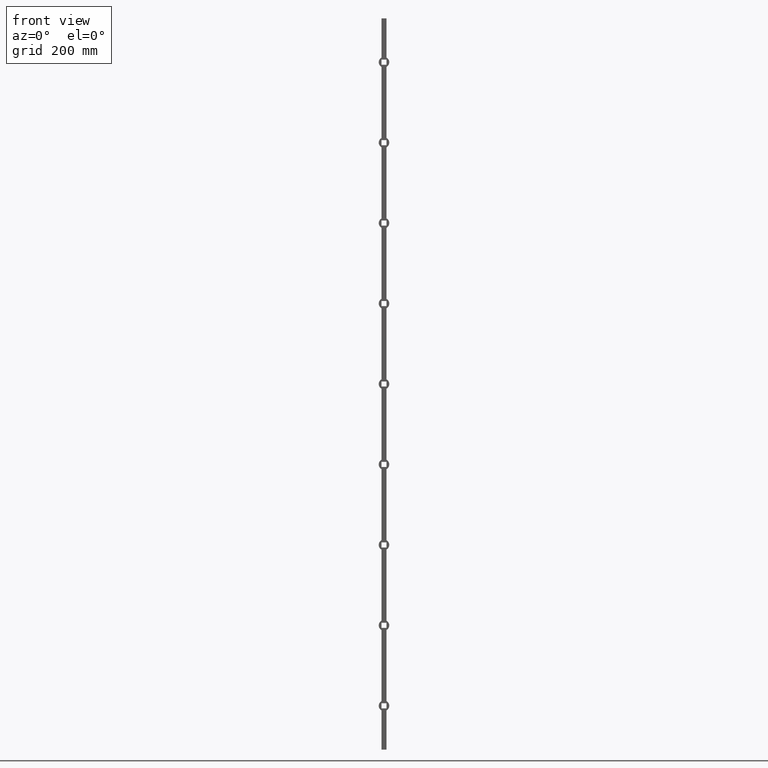
[diagram: clean part render]
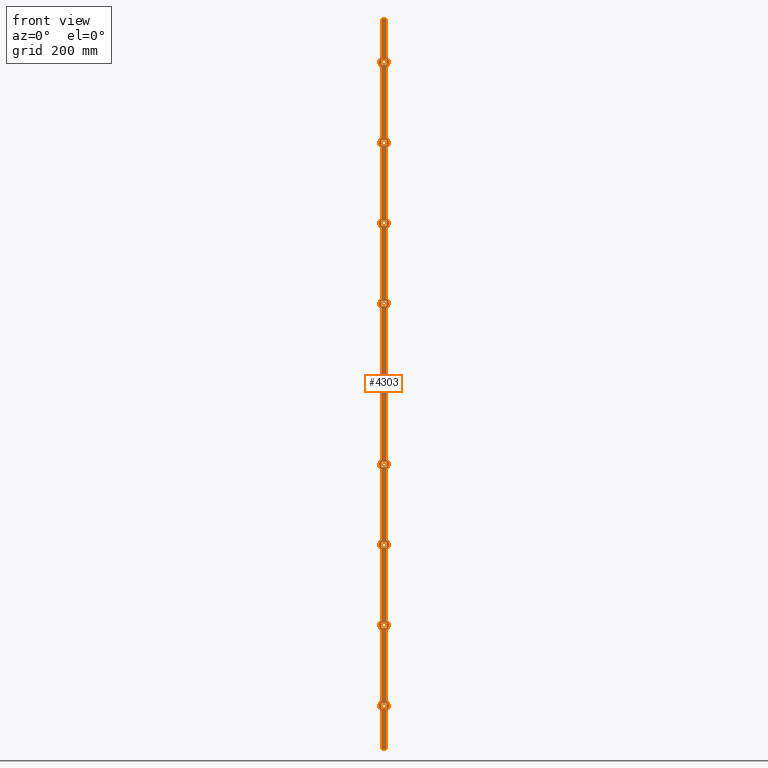
[diagram: same view with one face highlighted and labeled with its STEP entity id]
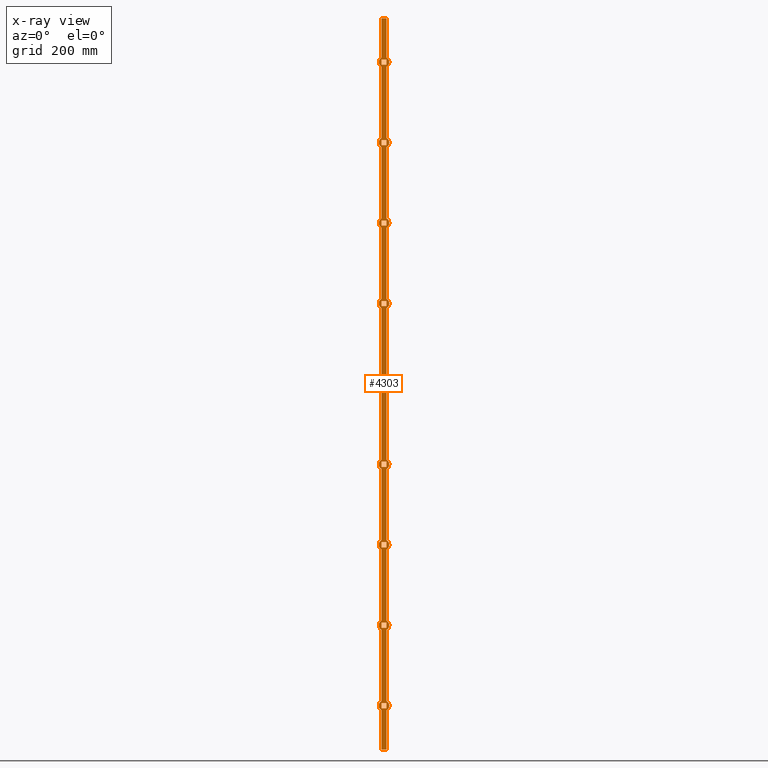
[diagram: x-ray of the same camera — body ghosted, the highlighted face saturated]
A machine part, front view. The second image highlights one B-rep face of the part: STEP entity #4303.
The next image is the same camera in x-ray: the body ghosted, the highlighted face saturated — about 0% of this face is hidden behind the body in this view.
In plain terms, the highlighted planar face has unit normal (0, 1, 0).
Its self-contained STEP definition (entity closure, byte-faithful):
#7 = CARTESIAN_POINT ( 'NONE',  ( -7.000000000000005329, -7.000000000000000888, 667.0000000000000000 ) ) ;
#47 = ORIENTED_EDGE ( 'NONE', *, *, #10634, .F. ) ;
#53 = DIRECTION ( 'NONE',  ( 0.000000000000000000, 0.000000000000000000, 1.000000000000000000 ) ) ;
#68 = LINE ( 'NONE', #8842, #1652 ) ;
#92 = CARTESIAN_POINT ( 'NONE',  ( 0.000000000000000000, -7.000000000000000888, -660.0000000000000000 ) ) ;
#98 = DIRECTION ( 'NONE',  ( -0.000000000000000000, -0.000000000000000000, -1.000000000000000000 ) ) ;
#103 = CARTESIAN_POINT ( 'NONE',  ( -6.999999999999998224, -6.999999999999999112, -892.6984250992002217 ) ) ;
#123 = ORIENTED_EDGE ( 'NONE', *, *, #2874, .T. ) ;
#125 = LINE ( 'NONE', #7382, #8103 ) ;
#161 = ORIENTED_EDGE ( 'NONE', *, *, #2109, .F. ) ;
#181 = EDGE_CURVE ( 'NONE', #1830, #12779, #4442, .T. ) ;
#192 = VECTOR ( 'NONE', #8059, 1000.000000000000000 ) ;
#199 = CARTESIAN_POINT ( 'NONE',  ( 0.000000000000000000, -7.000000000000000888, -220.0000000000000853 ) ) ;
#200 = VECTOR ( 'NONE', #12889, 1000.000000000000000 ) ;
#216 = CARTESIAN_POINT ( 'NONE',  ( -7.000000000000007105, -7.000000000000000000, -7.000000000000117240 ) ) ;
#270 = VECTOR ( 'NONE', #12635, 1000.000000000000000 ) ;
#276 = VERTEX_POINT ( 'NONE', #5765 ) ;
#281 = LINE ( 'NONE', #10455, #1715 ) ;
#320 = LINE ( 'NONE', #3691, #10215 ) ;
#367 = CARTESIAN_POINT ( 'NONE',  ( -6.999999999999998224, -7.000000000000000000, 1000.000000000000000 ) ) ;
#407 = EDGE_CURVE ( 'NONE', #3370, #492, #320, .T. ) ;
#431 = CARTESIAN_POINT ( 'NONE',  ( 7.000000000000005329, -7.000000000000000888, -227.0000000000000853 ) ) ;
#443 = CARTESIAN_POINT ( 'NONE',  ( 7.000000000000001776, -7.000000000000000000, 1000.000000000000000 ) ) ;
#454 = DIRECTION ( 'NONE',  ( -0.000000000000000000, -0.000000000000000000, -1.000000000000000000 ) ) ;
#492 = VERTEX_POINT ( 'NONE', #7803 ) ;
#535 = ORIENTED_EDGE ( 'NONE', *, *, #12861, .F. ) ;
#561 = AXIS2_PLACEMENT_3D ( 'NONE', #5137, #13164, #7038 ) ;
#587 = CARTESIAN_POINT ( 'NONE',  ( 0.000000000000000000, -7.000000000000000888, -440.0000000000000568 ) ) ;
#589 = EDGE_CURVE ( 'NONE', #10138, #10401, #8913, .T. ) ;
#590 = VERTEX_POINT ( 'NONE', #9875 ) ;
#595 = LINE ( 'NONE', #5726, #8250 ) ;
#597 = VERTEX_POINT ( 'NONE', #1987 ) ;
#633 = DIRECTION ( 'NONE',  ( 0.000000000000000000, 0.000000000000000000, 1.000000000000000000 ) ) ;
#636 = CARTESIAN_POINT ( 'NONE',  ( -7.000000000000007105, -7.000000000000000000, 212.9999999999999716 ) ) ;
#642 = CARTESIAN_POINT ( 'NONE',  ( 0.000000000000000000, -7.000000000000000000, 0.000000000000000000 ) ) ;
#675 = CARTESIAN_POINT ( 'NONE',  ( -6.999999999999998224, -6.999999999999999112, -672.6984250992003354 ) ) ;
#698 = ORIENTED_EDGE ( 'NONE', *, *, #2437, .F. ) ;
#701 = VERTEX_POINT ( 'NONE', #2103 ) ;
#714 = VERTEX_POINT ( 'NONE', #9082 ) ;
#717 = CARTESIAN_POINT ( 'NONE',  ( 7.000000000000001776, -7.000000000000000000, 1000.000000000000000 ) ) ;
#726 = ORIENTED_EDGE ( 'NONE', *, *, #6035, .T. ) ;
#732 = EDGE_CURVE ( 'NONE', #2887, #10269, #8580, .T. ) ;
#796 = DIRECTION ( 'NONE',  ( 1.239088197126289831E-16, 0.000000000000000000, 1.000000000000000000 ) ) ;
#822 = LINE ( 'NONE', #12216, #8947 ) ;
#829 = EDGE_LOOP ( 'NONE', ( #4002, #7876, #5985, #3697 ) ) ;
#848 = DIRECTION ( 'NONE',  ( -1.239088197126289831E-16, -0.000000000000000000, -1.000000000000000000 ) ) ;
#857 = CARTESIAN_POINT ( 'NONE',  ( -6.999999999999998224, -7.000000000000000000, 1000.000000000000000 ) ) ;
#859 = LINE ( 'NONE', #8534, #9307 ) ;
#867 = CARTESIAN_POINT ( 'NONE',  ( 7.000000000000021316, -7.000000000000000888, -672.6984250992003354 ) ) ;
#879 = CARTESIAN_POINT ( 'NONE',  ( -7.000000000000007105, -7.000000000000000888, -227.0000000000000853 ) ) ;
#904 = VECTOR ( 'NONE', #454, 1000.000000000000000 ) ;
#912 = FACE_BOUND ( 'NONE', #10917, .T. ) ;
#921 = VECTOR ( 'NONE', #11115, 1000.000000000000000 ) ;
#928 = VECTOR ( 'NONE', #12713, 1000.000000000000000 ) ;
#937 = EDGE_CURVE ( 'NONE', #1196, #3279, #6989, .T. ) ;
#951 = CIRCLE ( 'NONE', #10549, 14.49999999999995737 ) ;
#959 = ORIENTED_EDGE ( 'NONE', *, *, #407, .T. ) ;
#1082 = VECTOR ( 'NONE', #2829, 1000.000000000000000 ) ;
#1115 = DIRECTION ( 'NONE',  ( -1.239088197126289831E-16, -0.000000000000000000, -1.000000000000000000 ) ) ;
#1158 = CARTESIAN_POINT ( 'NONE',  ( -7.000000000000007105, -7.000000000000000888, -227.0000000000000853 ) ) ;
#1159 = DIRECTION ( 'NONE',  ( -1.239088197126289831E-16, -0.000000000000000000, -1.000000000000000000 ) ) ;
#1196 = VERTEX_POINT ( 'NONE', #11306 ) ;
#1199 = CARTESIAN_POINT ( 'NONE',  ( 0.000000000000000000, -7.000000000000000000, 880.0000000000000000 ) ) ;
#1211 = VERTEX_POINT ( 'NONE', #8645 ) ;
#1224 = DIRECTION ( 'NONE',  ( 1.000000000000000000, 0.000000000000000000, 0.000000000000000000 ) ) ;
#1250 = CARTESIAN_POINT ( 'NONE',  ( -7.000000000000007105, -7.000000000000000000, -447.0000000000000568 ) ) ;
#1301 = DIRECTION ( 'NONE',  ( -0.000000000000000000, -0.000000000000000000, -1.000000000000000000 ) ) ;
#1309 = EDGE_CURVE ( 'NONE', #9758, #6718, #951, .T. ) ;
#1326 = CARTESIAN_POINT ( 'NONE',  ( 7.000000000000021316, -7.000000000000000888, -452.6984250992003354 ) ) ;
#1411 = EDGE_CURVE ( 'NONE', #1817, #13088, #10500, .T. ) ;
#1430 = DIRECTION ( 'NONE',  ( -0.000000000000000000, -0.000000000000000000, -1.000000000000000000 ) ) ;
#1493 = VERTEX_POINT ( 'NONE', #5877 ) ;
#1504 = AXIS2_PLACEMENT_3D ( 'NONE', #3690, #7757, #11796 ) ;
#1506 = CARTESIAN_POINT ( 'NONE',  ( -7.000000000000018652, -7.000000000000000888, -427.3015749007997783 ) ) ;
#1571 = CARTESIAN_POINT ( 'NONE',  ( -7.000000000000007105, -7.000000000000000888, -7.000000000000006217 ) ) ;
#1607 = EDGE_LOOP ( 'NONE', ( #123, #7286, #726, #3859 ) ) ;
#1613 = EDGE_CURVE ( 'NONE', #2430, #8428, #5233, .T. ) ;
#1614 = VERTEX_POINT ( 'NONE', #4071 ) ;
#1617 = CARTESIAN_POINT ( 'NONE',  ( -6.999999999999998224, -7.000000000000000000, 427.3015749007996646 ) ) ;
#1618 = CARTESIAN_POINT ( 'NONE',  ( 7.000000000000001776, -7.000000000000000000, 1000.000000000000000 ) ) ;
#1652 = VECTOR ( 'NONE', #1805, 1000.000000000000000 ) ;
#1654 = ORIENTED_EDGE ( 'NONE', *, *, #5805, .T. ) ;
#1663 = CARTESIAN_POINT ( 'NONE',  ( -7.000000000000018652, -7.000000000000000000, 892.6984250992002217 ) ) ;
#1715 = VECTOR ( 'NONE', #10194, 1000.000000000000000 ) ;
#1716 = CARTESIAN_POINT ( 'NONE',  ( 7.000000000000005329, -7.000000000000000888, -447.0000000000000568 ) ) ;
#1747 = DIRECTION ( 'NONE',  ( 0.000000000000000000, 1.000000000000000000, 0.000000000000000000 ) ) ;
#1776 = EDGE_CURVE ( 'NONE', #10458, #6679, #13050, .T. ) ;
#1805 = DIRECTION ( 'NONE',  ( -1.239088197126289831E-16, -0.000000000000000000, -1.000000000000000000 ) ) ;
#1817 = VERTEX_POINT ( 'NONE', #11863 ) ;
#1819 = DIRECTION ( 'NONE',  ( -0.000000000000000000, -0.000000000000000000, -1.000000000000000000 ) ) ;
#1824 = CARTESIAN_POINT ( 'NONE',  ( 7.000000000000005329, -7.000000000000000888, 212.9999999999999716 ) ) ;
#1830 = VERTEX_POINT ( 'NONE', #9575 ) ;
#1850 = VERTEX_POINT ( 'NONE', #675 ) ;
#1864 = EDGE_CURVE ( 'NONE', #10401, #6679, #2852, .T. ) ;
#1875 = CARTESIAN_POINT ( 'NONE',  ( -7.000000000000007105, -7.000000000000000888, 212.9999999999999716 ) ) ;
#1899 = VERTEX_POINT ( 'NONE', #1824 ) ;
#1987 = CARTESIAN_POINT ( 'NONE',  ( 7.000000000000007105, -7.000000000000000888, 447.0000000000000000 ) ) ;
#2007 = VERTEX_POINT ( 'NONE', #5152 ) ;
#2032 = DIRECTION ( 'NONE',  ( 1.239088197126289831E-16, 0.000000000000000000, 1.000000000000000000 ) ) ;
#2035 = LINE ( 'NONE', #2329, #9037 ) ;
#2048 = VERTEX_POINT ( 'NONE', #1250 ) ;
#2074 = DIRECTION ( 'NONE',  ( 1.239088197126289831E-16, 0.000000000000000000, 1.000000000000000000 ) ) ;
#2103 = CARTESIAN_POINT ( 'NONE',  ( -7.000000000000005329, -7.000000000000000888, -213.0000000000000853 ) ) ;
#2107 = VECTOR ( 'NONE', #3175, 1000.000000000000000 ) ;
#2109 = EDGE_CURVE ( 'NONE', #12215, #12056, #3649, .T. ) ;
#2112 = VECTOR ( 'NONE', #796, 1000.000000000000000 ) ;
#2114 = CARTESIAN_POINT ( 'NONE',  ( -7.000000000000005329, -7.000000000000000888, 447.0000000000000000 ) ) ;
#2124 = CARTESIAN_POINT ( 'NONE',  ( -7.000000000000007105, -7.000000000000000000, -667.0000000000000000 ) ) ;
#2170 = CARTESIAN_POINT ( 'NONE',  ( 7.000000000000001776, -7.000000000000000000, 672.6984250992003354 ) ) ;
#2201 = VERTEX_POINT ( 'NONE', #8615 ) ;
#2203 = AXIS2_PLACEMENT_3D ( 'NONE', #9064, #11121, #8086 ) ;
#2237 = CARTESIAN_POINT ( 'NONE',  ( 0.000000000000000000, -7.000000000000000000, 440.0000000000000000 ) ) ;
#2240 = VERTEX_POINT ( 'NONE', #3554 ) ;
#2262 = VERTEX_POINT ( 'NONE', #7669 ) ;
#2268 = CARTESIAN_POINT ( 'NONE',  ( 7.000000000000005329, -7.000000000000000888, 873.0000000000000000 ) ) ;
#2329 = CARTESIAN_POINT ( 'NONE',  ( -7.000000000000005329, -7.000000000000000888, 7.000000000000006217 ) ) ;
#2344 = EDGE_CURVE ( 'NONE', #1614, #5225, #2504, .T. ) ;
#2403 = DIRECTION ( 'NONE',  ( 1.239088197126289831E-16, 0.000000000000000000, 1.000000000000000000 ) ) ;
#2409 = VECTOR ( 'NONE', #6978, 1000.000000000000000 ) ;
#2430 = VERTEX_POINT ( 'NONE', #5929 ) ;
#2437 = EDGE_CURVE ( 'NONE', #8437, #12215, #7267, .T. ) ;
#2444 = LINE ( 'NONE', #879, #5457 ) ;
#2491 = FACE_BOUND ( 'NONE', #3277, .T. ) ;
#2504 = LINE ( 'NONE', #5758, #7583 ) ;
#2585 = DIRECTION ( 'NONE',  ( 0.000000000000000000, 1.000000000000000000, 0.000000000000000000 ) ) ;
#2594 = ORIENTED_EDGE ( 'NONE', *, *, #5308, .T. ) ;
#2621 = VERTEX_POINT ( 'NONE', #4288 ) ;
#2640 = VERTEX_POINT ( 'NONE', #12447 ) ;
#2644 = CARTESIAN_POINT ( 'NONE',  ( -6.999999999999998224, -7.000000000000000000, 1000.000000000000000 ) ) ;
#2658 = EDGE_CURVE ( 'NONE', #11283, #2621, #125, .T. ) ;
#2673 = DIRECTION ( 'NONE',  ( -0.000000000000000000, -0.000000000000000000, -1.000000000000000000 ) ) ;
#2696 = CARTESIAN_POINT ( 'NONE',  ( -6.999999999999998224, -7.000000000000000000, -12.69842509920029983 ) ) ;
#2705 = DIRECTION ( 'NONE',  ( -0.000000000000000000, -0.000000000000000000, -1.000000000000000000 ) ) ;
#2709 = VECTOR ( 'NONE', #3736, 1000.000000000000000 ) ;
#2739 = VERTEX_POINT ( 'NONE', #5430 ) ;
#2743 = ORIENTED_EDGE ( 'NONE', *, *, #5144, .F. ) ;
#2745 = DIRECTION ( 'NONE',  ( 1.239088197126289831E-16, 0.000000000000000000, 1.000000000000000000 ) ) ;
#2746 = CARTESIAN_POINT ( 'NONE',  ( -7.000000000000007105, -7.000000000000000888, -667.0000000000000000 ) ) ;
#2750 = ORIENTED_EDGE ( 'NONE', *, *, #8760, .T. ) ;
#2766 = EDGE_CURVE ( 'NONE', #2048, #12079, #5507, .T. ) ;
#2770 = ORIENTED_EDGE ( 'NONE', *, *, #8777, .T. ) ;
#2776 = ORIENTED_EDGE ( 'NONE', *, *, #4319, .T. ) ;
#2797 = EDGE_CURVE ( 'NONE', #12056, #7466, #6461, .T. ) ;
#2829 = DIRECTION ( 'NONE',  ( -0.000000000000000000, -0.000000000000000000, -1.000000000000000000 ) ) ;
#2852 = LINE ( 'NONE', #717, #4269 ) ;
#2874 = EDGE_CURVE ( 'NONE', #701, #12656, #4102, .T. ) ;
#2887 = VERTEX_POINT ( 'NONE', #9511 ) ;
#2903 = ORIENTED_EDGE ( 'NONE', *, *, #12183, .T. ) ;
#2928 = VECTOR ( 'NONE', #848, 1000.000000000000000 ) ;
#2940 = CARTESIAN_POINT ( 'NONE',  ( 7.000000000000001776, -6.999999999999999112, -207.3015749007997783 ) ) ;
#2951 = VERTEX_POINT ( 'NONE', #10897 ) ;
#3067 = EDGE_LOOP ( 'NONE', ( #7865, #7376, #6528, #2776 ) ) ;
#3076 = EDGE_CURVE ( 'NONE', #1850, #6747, #10960, .T. ) ;
#3087 = VECTOR ( 'NONE', #7792, 1000.000000000000000 ) ;
#3158 = EDGE_CURVE ( 'NONE', #12886, #6747, #11280, .T. ) ;
#3175 = DIRECTION ( 'NONE',  ( 1.000000000000000000, 0.000000000000000000, 0.000000000000000000 ) ) ;
#3193 = LINE ( 'NONE', #431, #10207 ) ;
#3205 = VECTOR ( 'NONE', #4316, 1000.000000000000000 ) ;
#3248 = EDGE_CURVE ( 'NONE', #9315, #8868, #12077, .T. ) ;
#3270 = EDGE_LOOP ( 'NONE', ( #3768, #10025, #7380, #10777 ) ) ;
#3276 = CARTESIAN_POINT ( 'NONE',  ( -7.000000000000018652, -7.000000000000000000, 672.6984250992003354 ) ) ;
#3277 = EDGE_LOOP ( 'NONE', ( #6602, #1654, #10250, #8542 ) ) ;
#3279 = VERTEX_POINT ( 'NONE', #2124 ) ;
#3297 = FACE_BOUND ( 'NONE', #829, .T. ) ;
#3305 = ORIENTED_EDGE ( 'NONE', *, *, #5861, .F. ) ;
#3325 = VECTOR ( 'NONE', #7484, 1000.000000000000000 ) ;
#3330 = CARTESIAN_POINT ( 'NONE',  ( -7.000000000000007105, -7.000000000000000000, 873.0000000000000000 ) ) ;
#3352 = VECTOR ( 'NONE', #6040, 1000.000000000000000 ) ;
#3365 = DIRECTION ( 'NONE',  ( -1.000000000000000000, -0.000000000000000000, -0.000000000000000000 ) ) ;
#3370 = VERTEX_POINT ( 'NONE', #636 ) ;
#3389 = DIRECTION ( 'NONE',  ( 0.000000000000000000, 1.000000000000000000, 0.000000000000000000 ) ) ;
#3403 = CARTESIAN_POINT ( 'NONE',  ( -7.000000000000007105, -7.000000000000000888, -447.0000000000000568 ) ) ;
#3480 = LINE ( 'NONE', #12116, #7276 ) ;
#3513 = EDGE_CURVE ( 'NONE', #10918, #10166, #12065, .T. ) ;
#3521 = DIRECTION ( 'NONE',  ( 1.000000000000000000, 0.000000000000000000, 0.000000000000000000 ) ) ;
#3554 = CARTESIAN_POINT ( 'NONE',  ( 7.000000000000005329, -7.000000000000000888, 653.0000000000000000 ) ) ;
#3615 = CARTESIAN_POINT ( 'NONE',  ( 7.000000000000001776, -6.999999999999999112, -647.3015749007997783 ) ) ;
#3648 = CARTESIAN_POINT ( 'NONE',  ( -6.999999999999998224, -7.000000000000000000, 232.6984250992002785 ) ) ;
#3649 = LINE ( 'NONE', #9429, #3325 ) ;
#3664 = EDGE_CURVE ( 'NONE', #1850, #12018, #13036, .T. ) ;
#3690 = CARTESIAN_POINT ( 'NONE',  ( -6.999999999999998224, -7.000000000000000000, 1000.000000000000000 ) ) ;
#3691 = CARTESIAN_POINT ( 'NONE',  ( -7.000000000000007105, -7.000000000000000888, 212.9999999999999716 ) ) ;
#3697 = ORIENTED_EDGE ( 'NONE', *, *, #10974, .T. ) ;
#3720 = VERTEX_POINT ( 'NONE', #2114 ) ;
#3730 = DIRECTION ( 'NONE',  ( 0.000000000000000000, 0.000000000000000000, 1.000000000000000000 ) ) ;
#3736 = DIRECTION ( 'NONE',  ( -1.000000000000000000, -0.000000000000000000, -0.000000000000000000 ) ) ;
#3746 = ORIENTED_EDGE ( 'NONE', *, *, #9437, .F. ) ;
#3763 = ORIENTED_EDGE ( 'NONE', *, *, #2797, .F. ) ;
#3768 = ORIENTED_EDGE ( 'NONE', *, *, #9656, .T. ) ;
#3792 = VECTOR ( 'NONE', #3854, 1000.000000000000000 ) ;
#3803 = CARTESIAN_POINT ( 'NONE',  ( -7.000000000000007105, -7.000000000000000888, 433.0000000000000000 ) ) ;
#3804 = VERTEX_POINT ( 'NONE', #4430 ) ;
#3808 = DIRECTION ( 'NONE',  ( 0.000000000000000000, 0.000000000000000000, 1.000000000000000000 ) ) ;
#3841 = ORIENTED_EDGE ( 'NONE', *, *, #5370, .T. ) ;
#3850 = LINE ( 'NONE', #3803, #10875 ) ;
#3854 = DIRECTION ( 'NONE',  ( -0.000000000000000000, -0.000000000000000000, -1.000000000000000000 ) ) ;
#3859 = ORIENTED_EDGE ( 'NONE', *, *, #6291, .T. ) ;
#3873 = AXIS2_PLACEMENT_3D ( 'NONE', #199, #12451, #8646 ) ;
#3885 = LINE ( 'NONE', #1158, #8980 ) ;
#3886 = EDGE_CURVE ( 'NONE', #9412, #3804, #5682, .T. ) ;
#3888 = LINE ( 'NONE', #10075, #5772 ) ;
#3900 = DIRECTION ( 'NONE',  ( -1.239088197126289831E-16, -0.000000000000000000, -1.000000000000000000 ) ) ;
#3907 = DIRECTION ( 'NONE',  ( -1.000000000000000000, -0.000000000000000000, -0.000000000000000000 ) ) ;
#3929 = EDGE_CURVE ( 'NONE', #5816, #2887, #595, .T. ) ;
#3936 = FACE_BOUND ( 'NONE', #3067, .T. ) ;
#3961 = LINE ( 'NONE', #443, #12082 ) ;
#4002 = ORIENTED_EDGE ( 'NONE', *, *, #12998, .T. ) ;
#4017 = DIRECTION ( 'NONE',  ( -0.000000000000000000, -0.000000000000000000, -1.000000000000000000 ) ) ;
#4046 = DIRECTION ( 'NONE',  ( 0.000000000000000000, 0.000000000000000000, 1.000000000000000000 ) ) ;
#4071 = CARTESIAN_POINT ( 'NONE',  ( 7.000000000000005329, -7.000000000000000888, -887.0000000000000000 ) ) ;
#4089 = CIRCLE ( 'NONE', #5601, 14.50000000000001243 ) ;
#4102 = LINE ( 'NONE', #10673, #270 ) ;
#4137 = CARTESIAN_POINT ( 'NONE',  ( 7.000000000000000000, -7.000000000000000888, -232.6984250992003922 ) ) ;
#4140 = EDGE_CURVE ( 'NONE', #5531, #1196, #12868, .T. ) ;
#4190 = CARTESIAN_POINT ( 'NONE',  ( -7.000000000000005329, -7.000000000000000888, -653.0000000000000000 ) ) ;
#4266 = DIRECTION ( 'NONE',  ( 0.000000000000000000, 1.000000000000000000, 0.000000000000000000 ) ) ;
#4269 = VECTOR ( 'NONE', #6842, 1000.000000000000000 ) ;
#4270 = EDGE_CURVE ( 'NONE', #714, #9758, #7109, .T. ) ;
#4288 = CARTESIAN_POINT ( 'NONE',  ( 7.000000000000007105, -7.000000000000000888, 667.0000000000000000 ) ) ;
#4303 = ADVANCED_FACE ( 'NONE', ( #2491, #13019, #10150, #3297, #7258, #912, #12855, #5670, #3936, #11428 ), #11840, .F. ) ;
#4316 = DIRECTION ( 'NONE',  ( 1.000000000000000000, 0.000000000000000000, 0.000000000000000000 ) ) ;
#4318 = VERTEX_POINT ( 'NONE', #6686 ) ;
#4319 = EDGE_CURVE ( 'NONE', #12518, #5816, #9357, .T. ) ;
#4332 = ORIENTED_EDGE ( 'NONE', *, *, #3158, .F. ) ;
#4352 = AXIS2_PLACEMENT_3D ( 'NONE', #8268, #9328, #6324 ) ;
#4379 = LINE ( 'NONE', #367, #904 ) ;
#4399 = ORIENTED_EDGE ( 'NONE', *, *, #8839, .T. ) ;
#4430 = CARTESIAN_POINT ( 'NONE',  ( 7.000000000000001776, -7.000000000000000000, 12.69842509920029805 ) ) ;
#4442 = LINE ( 'NONE', #11138, #12749 ) ;
#4448 = CARTESIAN_POINT ( 'NONE',  ( 7.000000000000001776, -7.000000000000000000, 1000.000000000000000 ) ) ;
#4499 = VECTOR ( 'NONE', #3365, 1000.000000000000000 ) ;
#4516 = ORIENTED_EDGE ( 'NONE', *, *, #3886, .F. ) ;
#4606 = AXIS2_PLACEMENT_3D ( 'NONE', #1199, #5187, #4046 ) ;
#4610 = CARTESIAN_POINT ( 'NONE',  ( 7.000000000000005329, -7.000000000000000888, 433.0000000000000000 ) ) ;
#4627 = DIRECTION ( 'NONE',  ( 0.000000000000000000, 0.000000000000000000, 1.000000000000000000 ) ) ;
#4664 = ORIENTED_EDGE ( 'NONE', *, *, #589, .F. ) ;
#4669 = VECTOR ( 'NONE', #2705, 1000.000000000000000 ) ;
#4672 = CARTESIAN_POINT ( 'NONE',  ( 7.000000000000021316, -7.000000000000000000, 647.3015749007997783 ) ) ;
#4689 = EDGE_CURVE ( 'NONE', #4962, #13088, #5819, .T. ) ;
#4704 = CIRCLE ( 'NONE', #11777, 14.50000000000001243 ) ;
#4763 = CARTESIAN_POINT ( 'NONE',  ( -6.999999999999998224, -7.000000000000000000, 1000.000000000000000 ) ) ;
#4772 = EDGE_CURVE ( 'NONE', #7853, #5956, #4089, .T. ) ;
#4784 = LINE ( 'NONE', #1716, #5889 ) ;
#4794 = AXIS2_PLACEMENT_3D ( 'NONE', #9955, #9829, #3730 ) ;
#4807 = EDGE_CURVE ( 'NONE', #9315, #6224, #5979, .T. ) ;
#4887 = CARTESIAN_POINT ( 'NONE',  ( -7.000000000000005329, -7.000000000000000888, -433.0000000000000568 ) ) ;
#4962 = VERTEX_POINT ( 'NONE', #6406 ) ;
#4969 = DIRECTION ( 'NONE',  ( -0.000000000000000000, -0.000000000000000000, -1.000000000000000000 ) ) ;
#5009 = EDGE_CURVE ( 'NONE', #5166, #8868, #4379, .T. ) ;
#5014 = ORIENTED_EDGE ( 'NONE', *, *, #1864, .F. ) ;
#5015 = CARTESIAN_POINT ( 'NONE',  ( 7.000000000000001776, -7.000000000000000000, 1000.000000000000000 ) ) ;
#5041 = CARTESIAN_POINT ( 'NONE',  ( -6.999999999999998224, -7.000000000000000000, 1000.000000000000000 ) ) ;
#5052 = VECTOR ( 'NONE', #1115, 1000.000000000000000 ) ;
#5070 = LINE ( 'NONE', #8117, #7949 ) ;
#5073 = VECTOR ( 'NONE', #10853, 1000.000000000000000 ) ;
#5137 = CARTESIAN_POINT ( 'NONE',  ( 0.000000000000000000, -7.000000000000000888, -440.0000000000000568 ) ) ;
#5144 = EDGE_CURVE ( 'NONE', #276, #6224, #4704, .T. ) ;
#5152 = CARTESIAN_POINT ( 'NONE',  ( -7.000000000000005329, -7.000000000000000888, 7.000000000000006217 ) ) ;
#5166 = VERTEX_POINT ( 'NONE', #6853 ) ;
#5171 = DIRECTION ( 'NONE',  ( 0.000000000000000000, 1.000000000000000000, 0.000000000000000000 ) ) ;
#5187 = DIRECTION ( 'NONE',  ( 0.000000000000000000, 1.000000000000000000, 0.000000000000000000 ) ) ;
#5211 = DIRECTION ( 'NONE',  ( 0.000000000000000000, 1.000000000000000000, 0.000000000000000000 ) ) ;
#5217 = ORIENTED_EDGE ( 'NONE', *, *, #5544, .F. ) ;
#5225 = VERTEX_POINT ( 'NONE', #12796 ) ;
#5233 = LINE ( 'NONE', #12346, #12103 ) ;
#5279 = DIRECTION ( 'NONE',  ( 0.000000000000000000, 0.000000000000000000, 1.000000000000000000 ) ) ;
#5296 = VECTOR ( 'NONE', #4969, 1000.000000000000000 ) ;
#5308 = EDGE_CURVE ( 'NONE', #2951, #5531, #7634, .T. ) ;
#5329 = ORIENTED_EDGE ( 'NONE', *, *, #9478, .T. ) ;
#5370 = EDGE_CURVE ( 'NONE', #5225, #5700, #8540, .T. ) ;
#5417 = CARTESIAN_POINT ( 'NONE',  ( 0.000000000000000000, -7.000000000000000000, 660.0000000000000000 ) ) ;
#5430 = CARTESIAN_POINT ( 'NONE',  ( 7.000000000000021316, -7.000000000000000000, 427.3015749007997215 ) ) ;
#5433 = CARTESIAN_POINT ( 'NONE',  ( -7.000000000000007105, -7.000000000000000888, 433.0000000000000000 ) ) ;
#5446 = LINE ( 'NONE', #12913, #2928 ) ;
#5450 = LINE ( 'NONE', #10805, #3087 ) ;
#5457 = VECTOR ( 'NONE', #2745, 1000.000000000000000 ) ;
#5507 = LINE ( 'NONE', #3403, #928 ) ;
#5531 = VERTEX_POINT ( 'NONE', #9532 ) ;
#5544 = EDGE_CURVE ( 'NONE', #6718, #8530, #859, .T. ) ;
#5562 = EDGE_CURVE ( 'NONE', #3279, #2951, #9777, .T. ) ;
#5568 = CIRCLE ( 'NONE', #4352, 14.50000000000001243 ) ;
#5601 = AXIS2_PLACEMENT_3D ( 'NONE', #5908, #10112, #11016 ) ;
#5605 = LINE ( 'NONE', #12800, #200 ) ;
#5670 = FACE_BOUND ( 'NONE', #6070, .T. ) ;
#5673 = ORIENTED_EDGE ( 'NONE', *, *, #11923, .F. ) ;
#5682 = LINE ( 'NONE', #12869, #12552 ) ;
#5700 = VERTEX_POINT ( 'NONE', #10779 ) ;
#5726 = CARTESIAN_POINT ( 'NONE',  ( -7.000000000000005329, -7.000000000000000888, 887.0000000000000000 ) ) ;
#5743 = CARTESIAN_POINT ( 'NONE',  ( 0.000000000000000000, -7.000000000000000000, 219.9999999999999716 ) ) ;
#5758 = CARTESIAN_POINT ( 'NONE',  ( -7.000000000000007105, -7.000000000000000888, -887.0000000000000000 ) ) ;
#5765 = CARTESIAN_POINT ( 'NONE',  ( -6.999999999999998224, -7.000000000000000000, 207.3015749007996646 ) ) ;
#5772 = VECTOR ( 'NONE', #6855, 1000.000000000000000 ) ;
#5805 = EDGE_CURVE ( 'NONE', #2621, #2240, #5446, .T. ) ;
#5806 = ORIENTED_EDGE ( 'NONE', *, *, #5009, .T. ) ;
#5816 = VERTEX_POINT ( 'NONE', #6800 ) ;
#5819 = CIRCLE ( 'NONE', #9030, 14.50000000000001243 ) ;
#5832 = VECTOR ( 'NONE', #6591, 1000.000000000000000 ) ;
#5845 = ORIENTED_EDGE ( 'NONE', *, *, #12882, .T. ) ;
#5861 = EDGE_CURVE ( 'NONE', #2739, #12240, #7042, .T. ) ;
#5877 = CARTESIAN_POINT ( 'NONE',  ( -7.000000000000007105, -7.000000000000000000, 653.0000000000000000 ) ) ;
#5881 = CARTESIAN_POINT ( 'NONE',  ( 7.000000000000001776, -7.000000000000000000, 1000.000000000000000 ) ) ;
#5889 = VECTOR ( 'NONE', #3900, 1000.000000000000000 ) ;
#5901 = LINE ( 'NONE', #11168, #7006 ) ;
#5908 = CARTESIAN_POINT ( 'NONE',  ( 0.000000000000000000, -7.000000000000000888, -220.0000000000000853 ) ) ;
#5929 = CARTESIAN_POINT ( 'NONE',  ( -6.999999999999998224, -7.000000000000000000, 867.3015749007997783 ) ) ;
#5945 = VERTEX_POINT ( 'NONE', #10336 ) ;
#5956 = VERTEX_POINT ( 'NONE', #4137 ) ;
#5958 = CARTESIAN_POINT ( 'NONE',  ( -7.000000000000007105, -7.000000000000000888, -7.000000000000006217 ) ) ;
#5979 = LINE ( 'NONE', #857, #12532 ) ;
#5985 = ORIENTED_EDGE ( 'NONE', *, *, #10795, .T. ) ;
#6017 = ORIENTED_EDGE ( 'NONE', *, *, #1776, .T. ) ;
#6035 = EDGE_CURVE ( 'NONE', #590, #7115, #3885, .T. ) ;
#6040 = DIRECTION ( 'NONE',  ( -1.000000000000000000, -0.000000000000000000, -0.000000000000000000 ) ) ;
#6070 = EDGE_LOOP ( 'NONE', ( #2750, #11535, #8710, #3841 ) ) ;
#6198 = EDGE_CURVE ( 'NONE', #4962, #12018, #12334, .T. ) ;
#6224 = VERTEX_POINT ( 'NONE', #3648 ) ;
#6268 = EDGE_CURVE ( 'NONE', #11867, #1614, #68, .T. ) ;
#6291 = EDGE_CURVE ( 'NONE', #7115, #701, #2444, .T. ) ;
#6324 = DIRECTION ( 'NONE',  ( 0.000000000000000000, 0.000000000000000000, 1.000000000000000000 ) ) ;
#6379 = LINE ( 'NONE', #4763, #11990 ) ;
#6406 = CARTESIAN_POINT ( 'NONE',  ( -6.999999999999998224, -6.999999999999999112, -452.6984250992003354 ) ) ;
#6461 = CIRCLE ( 'NONE', #10480, 14.49999999999995737 ) ;
#6491 = LINE ( 'NONE', #5958, #11624 ) ;
#6522 = CARTESIAN_POINT ( 'NONE',  ( -6.999999999999998224, -7.000000000000000000, -1000.000000000000000 ) ) ;
#6528 = ORIENTED_EDGE ( 'NONE', *, *, #7343, .T. ) ;
#6564 = EDGE_CURVE ( 'NONE', #9034, #2262, #12654, .T. ) ;
#6585 = ORIENTED_EDGE ( 'NONE', *, *, #937, .T. ) ;
#6591 = DIRECTION ( 'NONE',  ( -0.000000000000000000, -0.000000000000000000, -1.000000000000000000 ) ) ;
#6602 = ORIENTED_EDGE ( 'NONE', *, *, #2658, .T. ) ;
#6607 = AXIS2_PLACEMENT_3D ( 'NONE', #92, #10214, #53 ) ;
#6613 = ORIENTED_EDGE ( 'NONE', *, *, #4140, .T. ) ;
#6645 = CARTESIAN_POINT ( 'NONE',  ( -6.999999999999998224, -7.000000000000000000, 1000.000000000000000 ) ) ;
#6679 = VERTEX_POINT ( 'NONE', #6722 ) ;
#6686 = CARTESIAN_POINT ( 'NONE',  ( 7.000000000000007105, -7.000000000000000888, 226.9999999999999716 ) ) ;
#6695 = EDGE_CURVE ( 'NONE', #597, #9034, #5450, .T. ) ;
#6718 = VERTEX_POINT ( 'NONE', #4672 ) ;
#6722 = CARTESIAN_POINT ( 'NONE',  ( 7.000000000000001776, -7.000000000000000000, -1000.000000000000000 ) ) ;
#6732 = CARTESIAN_POINT ( 'NONE',  ( 7.000000000000000000, -7.000000000000000000, 207.3015749007996646 ) ) ;
#6747 = VERTEX_POINT ( 'NONE', #6894 ) ;
#6776 = EDGE_CURVE ( 'NONE', #492, #4318, #3888, .T. ) ;
#6800 = CARTESIAN_POINT ( 'NONE',  ( -7.000000000000005329, -7.000000000000000888, 887.0000000000000000 ) ) ;
#6801 = LINE ( 'NONE', #5881, #3792 ) ;
#6836 = LINE ( 'NONE', #11190, #3352 ) ;
#6838 = ORIENTED_EDGE ( 'NONE', *, *, #1613, .T. ) ;
#6842 = DIRECTION ( 'NONE',  ( -0.000000000000000000, -0.000000000000000000, -1.000000000000000000 ) ) ;
#6850 = EDGE_CURVE ( 'NONE', #5166, #8428, #12808, .T. ) ;
#6852 = DIRECTION ( 'NONE',  ( 1.239088197126289831E-16, 0.000000000000000000, 1.000000000000000000 ) ) ;
#6853 = CARTESIAN_POINT ( 'NONE',  ( -6.999999999999998224, -7.000000000000000000, 647.3015749007997783 ) ) ;
#6855 = DIRECTION ( 'NONE',  ( 1.000000000000000000, 0.000000000000000000, 0.000000000000000000 ) ) ;
#6867 = CARTESIAN_POINT ( 'NONE',  ( -7.000000000000007105, -7.000000000000000888, 653.0000000000000000 ) ) ;
#6877 = LINE ( 'NONE', #4448, #12011 ) ;
#6882 = AXIS2_PLACEMENT_3D ( 'NONE', #5417, #3389, #9404 ) ;
#6894 = CARTESIAN_POINT ( 'NONE',  ( -7.000000000000018652, -7.000000000000000888, -867.3015749007997783 ) ) ;
#6926 = ORIENTED_EDGE ( 'NONE', *, *, #7169, .F. ) ;
#6930 = DIRECTION ( 'NONE',  ( 0.000000000000000000, 0.000000000000000000, 1.000000000000000000 ) ) ;
#6978 = DIRECTION ( 'NONE',  ( 1.000000000000000000, 0.000000000000000000, 0.000000000000000000 ) ) ;
#6989 = LINE ( 'NONE', #2746, #2709 ) ;
#7006 = VECTOR ( 'NONE', #13160, 1000.000000000000000 ) ;
#7038 = DIRECTION ( 'NONE',  ( 0.000000000000000000, 0.000000000000000000, 1.000000000000000000 ) ) ;
#7042 = LINE ( 'NONE', #5015, #5296 ) ;
#7085 = DIRECTION ( 'NONE',  ( 0.000000000000000000, 0.000000000000000000, 1.000000000000000000 ) ) ;
#7109 = LINE ( 'NONE', #1618, #5832 ) ;
#7115 = VERTEX_POINT ( 'NONE', #10234 ) ;
#7118 = DIRECTION ( 'NONE',  ( -1.239088197126289831E-16, -0.000000000000000000, -1.000000000000000000 ) ) ;
#7128 = DIRECTION ( 'NONE',  ( 0.000000000000000000, 0.000000000000000000, 1.000000000000000000 ) ) ;
#7169 = EDGE_CURVE ( 'NONE', #2201, #8055, #6877, .T. ) ;
#7179 = CARTESIAN_POINT ( 'NONE',  ( 7.000000000000001776, -6.999999999999999112, -427.3015749007997783 ) ) ;
#7202 = CARTESIAN_POINT ( 'NONE',  ( 7.000000000000007105, -7.000000000000000888, 7.000000000000006217 ) ) ;
#7213 = CARTESIAN_POINT ( 'NONE',  ( -7.000000000000005329, -7.000000000000000888, 447.0000000000000000 ) ) ;
#7258 = FACE_BOUND ( 'NONE', #1607, .T. ) ;
#7267 = CIRCLE ( 'NONE', #561, 14.50000000000001243 ) ;
#7272 = EDGE_CURVE ( 'NONE', #3804, #5945, #12644, .T. ) ;
#7276 = VECTOR ( 'NONE', #10159, 1000.000000000000000 ) ;
#7286 = ORIENTED_EDGE ( 'NONE', *, *, #10393, .T. ) ;
#7343 = EDGE_CURVE ( 'NONE', #10269, #12518, #5605, .T. ) ;
#7376 = ORIENTED_EDGE ( 'NONE', *, *, #732, .T. ) ;
#7380 = ORIENTED_EDGE ( 'NONE', *, *, #6564, .T. ) ;
#7381 = CARTESIAN_POINT ( 'NONE',  ( 7.000000000000001776, -7.000000000000000000, 452.6984250992002785 ) ) ;
#7382 = CARTESIAN_POINT ( 'NONE',  ( -7.000000000000005329, -7.000000000000000888, 667.0000000000000000 ) ) ;
#7402 = VECTOR ( 'NONE', #2074, 1000.000000000000000 ) ;
#7403 = ORIENTED_EDGE ( 'NONE', *, *, #6198, .T. ) ;
#7466 = VERTEX_POINT ( 'NONE', #867 ) ;
#7484 = DIRECTION ( 'NONE',  ( -0.000000000000000000, -0.000000000000000000, -1.000000000000000000 ) ) ;
#7583 = VECTOR ( 'NONE', #3907, 1000.000000000000000 ) ;
#7619 = DIRECTION ( 'NONE',  ( 1.239088197126289831E-16, 0.000000000000000000, 1.000000000000000000 ) ) ;
#7631 = ORIENTED_EDGE ( 'NONE', *, *, #1309, .F. ) ;
#7634 = LINE ( 'NONE', #4190, #2107 ) ;
#7652 = CARTESIAN_POINT ( 'NONE',  ( 0.000000000000000000, -7.000000000000000000, 660.0000000000000000 ) ) ;
#7669 = CARTESIAN_POINT ( 'NONE',  ( -7.000000000000007105, -7.000000000000000000, 433.0000000000000568 ) ) ;
#7674 = CARTESIAN_POINT ( 'NONE',  ( 7.000000000000021316, -7.000000000000000888, -892.6984250992002217 ) ) ;
#7738 = ORIENTED_EDGE ( 'NONE', *, *, #9117, .F. ) ;
#7744 = DIRECTION ( 'NONE',  ( 0.000000000000000000, 1.000000000000000000, 0.000000000000000000 ) ) ;
#7757 = DIRECTION ( 'NONE',  ( 0.000000000000000000, 1.000000000000000000, 0.000000000000000000 ) ) ;
#7792 = DIRECTION ( 'NONE',  ( -1.239088197126289831E-16, -0.000000000000000000, -1.000000000000000000 ) ) ;
#7803 = CARTESIAN_POINT ( 'NONE',  ( -7.000000000000005329, -7.000000000000000888, 226.9999999999999716 ) ) ;
#7814 = ORIENTED_EDGE ( 'NONE', *, *, #7272, .F. ) ;
#7821 = CARTESIAN_POINT ( 'NONE',  ( -6.999999999999998224, -7.000000000000000000, 1000.000000000000000 ) ) ;
#7853 = VERTEX_POINT ( 'NONE', #2940 ) ;
#7865 = ORIENTED_EDGE ( 'NONE', *, *, #3929, .T. ) ;
#7876 = ORIENTED_EDGE ( 'NONE', *, *, #12505, .T. ) ;
#7898 = EDGE_CURVE ( 'NONE', #1899, #3370, #7996, .T. ) ;
#7949 = VECTOR ( 'NONE', #10211, 1000.000000000000000 ) ;
#7996 = LINE ( 'NONE', #1875, #192 ) ;
#8002 = DIRECTION ( 'NONE',  ( -0.000000000000000000, -0.000000000000000000, -1.000000000000000000 ) ) ;
#8026 = ORIENTED_EDGE ( 'NONE', *, *, #2766, .T. ) ;
#8055 = VERTEX_POINT ( 'NONE', #12641 ) ;
#8059 = DIRECTION ( 'NONE',  ( -1.000000000000000000, -0.000000000000000000, -0.000000000000000000 ) ) ;
#8068 = CARTESIAN_POINT ( 'NONE',  ( 0.000000000000000000, -7.000000000000000000, 0.000000000000000000 ) ) ;
#8086 = DIRECTION ( 'NONE',  ( 0.000000000000000000, 0.000000000000000000, 1.000000000000000000 ) ) ;
#8103 = VECTOR ( 'NONE', #12320, 1000.000000000000000 ) ;
#8117 = CARTESIAN_POINT ( 'NONE',  ( -7.000000000000005329, -7.000000000000000888, -433.0000000000000568 ) ) ;
#8137 = CARTESIAN_POINT ( 'NONE',  ( -6.999999999999998224, -7.000000000000000000, 1000.000000000000000 ) ) ;
#8160 = LINE ( 'NONE', #8163, #2409 ) ;
#8163 = CARTESIAN_POINT ( 'NONE',  ( -7.000000000000005329, -7.000000000000000888, -873.0000000000000000 ) ) ;
#8188 = EDGE_CURVE ( 'NONE', #1493, #11283, #11849, .T. ) ;
#8234 = ORIENTED_EDGE ( 'NONE', *, *, #5562, .T. ) ;
#8249 = CARTESIAN_POINT ( 'NONE',  ( 7.000000000000001776, -6.999999999999999112, -867.3015749007997783 ) ) ;
#8250 = VECTOR ( 'NONE', #8855, 1000.000000000000000 ) ;
#8268 = CARTESIAN_POINT ( 'NONE',  ( 0.000000000000000000, -7.000000000000000000, 219.9999999999999716 ) ) ;
#8306 = EDGE_CURVE ( 'NONE', #1830, #2201, #8785, .T. ) ;
#8342 = CARTESIAN_POINT ( 'NONE',  ( 7.000000000000005329, -7.000000000000000888, -447.0000000000000568 ) ) ;
#8382 = AXIS2_PLACEMENT_3D ( 'NONE', #2237, #4266, #5279 ) ;
#8428 = VERTEX_POINT ( 'NONE', #3276 ) ;
#8437 = VERTEX_POINT ( 'NONE', #7179 ) ;
#8492 = DIRECTION ( 'NONE',  ( -0.000000000000000000, -0.000000000000000000, -1.000000000000000000 ) ) ;
#8530 = VERTEX_POINT ( 'NONE', #7381 ) ;
#8534 = CARTESIAN_POINT ( 'NONE',  ( 7.000000000000001776, -7.000000000000000000, 1000.000000000000000 ) ) ;
#8540 = LINE ( 'NONE', #12391, #7402 ) ;
#8542 = ORIENTED_EDGE ( 'NONE', *, *, #8188, .T. ) ;
#8580 = LINE ( 'NONE', #2268, #9402 ) ;
#8615 = CARTESIAN_POINT ( 'NONE',  ( 7.000000000000001776, -7.000000000000000000, 1000.000000000000000 ) ) ;
#8636 = ORIENTED_EDGE ( 'NONE', *, *, #6776, .T. ) ;
#8645 = CARTESIAN_POINT ( 'NONE',  ( 7.000000000000005329, -7.000000000000000888, -7.000000000000006217 ) ) ;
#8646 = DIRECTION ( 'NONE',  ( 0.000000000000000000, 0.000000000000000000, 1.000000000000000000 ) ) ;
#8691 = EDGE_LOOP ( 'NONE', ( #2594, #6613, #6585, #8234 ) ) ;
#8705 = VECTOR ( 'NONE', #7619, 1000.000000000000000 ) ;
#8710 = ORIENTED_EDGE ( 'NONE', *, *, #2344, .T. ) ;
#8736 = EDGE_CURVE ( 'NONE', #2262, #3720, #3850, .T. ) ;
#8760 = EDGE_CURVE ( 'NONE', #5700, #11867, #8160, .T. ) ;
#8771 = CARTESIAN_POINT ( 'NONE',  ( -7.000000000000018652, -7.000000000000000888, -647.3015749007997783 ) ) ;
#8777 = EDGE_CURVE ( 'NONE', #10918, #2640, #6379, .T. ) ;
#8783 = DIRECTION ( 'NONE',  ( 0.000000000000000000, 1.000000000000000000, 0.000000000000000000 ) ) ;
#8785 = LINE ( 'NONE', #8137, #11834 ) ;
#8839 = EDGE_CURVE ( 'NONE', #4318, #1899, #822, .T. ) ;
#8842 = CARTESIAN_POINT ( 'NONE',  ( 7.000000000000005329, -7.000000000000000888, -887.0000000000000000 ) ) ;
#8855 = DIRECTION ( 'NONE',  ( 1.000000000000000000, 0.000000000000000000, 0.000000000000000000 ) ) ;
#8866 = VERTEX_POINT ( 'NONE', #7202 ) ;
#8868 = VERTEX_POINT ( 'NONE', #10471 ) ;
#8913 = CIRCLE ( 'NONE', #2203, 14.49999999999995737 ) ;
#8934 = CIRCLE ( 'NONE', #4794, 14.49999999999995737 ) ;
#8947 = VECTOR ( 'NONE', #7118, 1000.000000000000000 ) ;
#8980 = VECTOR ( 'NONE', #10380, 1000.000000000000000 ) ;
#9007 = VERTEX_POINT ( 'NONE', #10778 ) ;
#9021 = EDGE_LOOP ( 'NONE', ( #8636, #4399, #12531, #959 ) ) ;
#9030 = AXIS2_PLACEMENT_3D ( 'NONE', #587, #2585, #633 ) ;
#9034 = VERTEX_POINT ( 'NONE', #4610 ) ;
#9037 = VECTOR ( 'NONE', #1224, 1000.000000000000000 ) ;
#9038 = EDGE_CURVE ( 'NONE', #276, #10166, #12131, .T. ) ;
#9064 = CARTESIAN_POINT ( 'NONE',  ( 0.000000000000000000, -7.000000000000000888, -880.0000000000000000 ) ) ;
#9082 = CARTESIAN_POINT ( 'NONE',  ( 7.000000000000021316, -7.000000000000000000, 867.3015749007997783 ) ) ;
#9110 = AXIS2_PLACEMENT_3D ( 'NONE', #11299, #5211, #10181 ) ;
#9117 = EDGE_CURVE ( 'NONE', #5945, #7853, #5901, .T. ) ;
#9135 = VECTOR ( 'NONE', #2403, 1000.000000000000000 ) ;
#9138 = DIRECTION ( 'NONE',  ( -0.000000000000000000, -0.000000000000000000, -1.000000000000000000 ) ) ;
#9307 = VECTOR ( 'NONE', #8492, 1000.000000000000000 ) ;
#9315 = VERTEX_POINT ( 'NONE', #1617 ) ;
#9328 = DIRECTION ( 'NONE',  ( 0.000000000000000000, 1.000000000000000000, 0.000000000000000000 ) ) ;
#9357 = LINE ( 'NONE', #10675, #8705 ) ;
#9402 = VECTOR ( 'NONE', #1159, 1000.000000000000000 ) ;
#9404 = DIRECTION ( 'NONE',  ( 0.000000000000000000, 0.000000000000000000, 1.000000000000000000 ) ) ;
#9412 = VERTEX_POINT ( 'NONE', #6732 ) ;
#9429 = CARTESIAN_POINT ( 'NONE',  ( 7.000000000000001776, -7.000000000000000000, 1000.000000000000000 ) ) ;
#9437 = EDGE_CURVE ( 'NONE', #8055, #714, #8934, .T. ) ;
#9478 = EDGE_CURVE ( 'NONE', #9007, #11021, #4784, .T. ) ;
#9511 = CARTESIAN_POINT ( 'NONE',  ( 7.000000000000007105, -7.000000000000000888, 887.0000000000000000 ) ) ;
#9532 = CARTESIAN_POINT ( 'NONE',  ( 7.000000000000007105, -7.000000000000000888, -653.0000000000000000 ) ) ;
#9575 = CARTESIAN_POINT ( 'NONE',  ( -6.999999999999998224, -7.000000000000000000, 1000.000000000000000 ) ) ;
#9610 = DIRECTION ( 'NONE',  ( -1.239088197126289831E-16, -0.000000000000000000, -1.000000000000000000 ) ) ;
#9656 = EDGE_CURVE ( 'NONE', #3720, #597, #11014, .T. ) ;
#9671 = ORIENTED_EDGE ( 'NONE', *, *, #3248, .F. ) ;
#9723 = EDGE_CURVE ( 'NONE', #12240, #9412, #5568, .T. ) ;
#9726 = CARTESIAN_POINT ( 'NONE',  ( 0.000000000000000000, -7.000000000000000888, -660.0000000000000000 ) ) ;
#9758 = VERTEX_POINT ( 'NONE', #2170 ) ;
#9777 = LINE ( 'NONE', #10553, #9135 ) ;
#9816 = ORIENTED_EDGE ( 'NONE', *, *, #1411, .T. ) ;
#9829 = DIRECTION ( 'NONE',  ( 0.000000000000000000, 1.000000000000000000, 0.000000000000000000 ) ) ;
#9832 = ORIENTED_EDGE ( 'NONE', *, *, #8306, .F. ) ;
#9864 = ORIENTED_EDGE ( 'NONE', *, *, #3076, .T. ) ;
#9875 = CARTESIAN_POINT ( 'NONE',  ( 7.000000000000005329, -7.000000000000000888, -227.0000000000000853 ) ) ;
#9955 = CARTESIAN_POINT ( 'NONE',  ( 0.000000000000000000, -7.000000000000000000, 880.0000000000000000 ) ) ;
#9972 = ORIENTED_EDGE ( 'NONE', *, *, #9723, .F. ) ;
#9982 = DIRECTION ( 'NONE',  ( 0.000000000000000000, 1.000000000000000000, 0.000000000000000000 ) ) ;
#10025 = ORIENTED_EDGE ( 'NONE', *, *, #6695, .T. ) ;
#10075 = CARTESIAN_POINT ( 'NONE',  ( -7.000000000000005329, -7.000000000000000888, 226.9999999999999716 ) ) ;
#10112 = DIRECTION ( 'NONE',  ( 0.000000000000000000, 1.000000000000000000, 0.000000000000000000 ) ) ;
#10130 = EDGE_CURVE ( 'NONE', #2240, #1493, #6836, .T. ) ;
#10138 = VERTEX_POINT ( 'NONE', #8249 ) ;
#10150 = FACE_BOUND ( 'NONE', #9021, .T. ) ;
#10159 = DIRECTION ( 'NONE',  ( -1.000000000000000000, -0.000000000000000000, -0.000000000000000000 ) ) ;
#10166 = VERTEX_POINT ( 'NONE', #10297 ) ;
#10181 = DIRECTION ( 'NONE',  ( 0.000000000000000000, 0.000000000000000000, 1.000000000000000000 ) ) ;
#10194 = DIRECTION ( 'NONE',  ( -1.239088197126289831E-16, -0.000000000000000000, -1.000000000000000000 ) ) ;
#10207 = VECTOR ( 'NONE', #9610, 1000.000000000000000 ) ;
#10211 = DIRECTION ( 'NONE',  ( 1.000000000000000000, 0.000000000000000000, 0.000000000000000000 ) ) ;
#10214 = DIRECTION ( 'NONE',  ( 0.000000000000000000, 1.000000000000000000, 0.000000000000000000 ) ) ;
#10215 = VECTOR ( 'NONE', #10819, 1000.000000000000000 ) ;
#10234 = CARTESIAN_POINT ( 'NONE',  ( -7.000000000000007105, -7.000000000000000000, -227.0000000000000853 ) ) ;
#10250 = ORIENTED_EDGE ( 'NONE', *, *, #10130, .T. ) ;
#10269 = VERTEX_POINT ( 'NONE', #11370 ) ;
#10280 = VERTEX_POINT ( 'NONE', #216 ) ;
#10289 = ORIENTED_EDGE ( 'NONE', *, *, #181, .T. ) ;
#10297 = CARTESIAN_POINT ( 'NONE',  ( -6.999999999999998224, -7.000000000000000000, 12.69842509920029983 ) ) ;
#10336 = CARTESIAN_POINT ( 'NONE',  ( 7.000000000000001776, -7.000000000000000000, -12.69842509920029805 ) ) ;
#10347 = VECTOR ( 'NONE', #3521, 1000.000000000000000 ) ;
#10380 = DIRECTION ( 'NONE',  ( -1.000000000000000000, -0.000000000000000000, -0.000000000000000000 ) ) ;
#10393 = EDGE_CURVE ( 'NONE', #12656, #590, #3193, .T. ) ;
#10401 = VERTEX_POINT ( 'NONE', #7674 ) ;
#10435 = CARTESIAN_POINT ( 'NONE',  ( 7.000000000000007105, -7.000000000000000888, -873.0000000000000000 ) ) ;
#10437 = ORIENTED_EDGE ( 'NONE', *, *, #11193, .T. ) ;
#10455 = CARTESIAN_POINT ( 'NONE',  ( 7.000000000000005329, -7.000000000000000888, -7.000000000000006217 ) ) ;
#10458 = VERTEX_POINT ( 'NONE', #10870 ) ;
#10471 = CARTESIAN_POINT ( 'NONE',  ( -6.999999999999977796, -7.000000000000000000, 452.6984250992003354 ) ) ;
#10480 = AXIS2_PLACEMENT_3D ( 'NONE', #9726, #10705, #7085 ) ;
#10500 = LINE ( 'NONE', #2644, #5073 ) ;
#10549 = AXIS2_PLACEMENT_3D ( 'NONE', #7652, #8783, #3808 ) ;
#10553 = CARTESIAN_POINT ( 'NONE',  ( -7.000000000000007105, -7.000000000000000888, -667.0000000000000000 ) ) ;
#10634 = EDGE_CURVE ( 'NONE', #2430, #12779, #11316, .T. ) ;
#10673 = CARTESIAN_POINT ( 'NONE',  ( -7.000000000000005329, -7.000000000000000888, -213.0000000000000853 ) ) ;
#10675 = CARTESIAN_POINT ( 'NONE',  ( -7.000000000000007105, -7.000000000000000888, 873.0000000000000000 ) ) ;
#10705 = DIRECTION ( 'NONE',  ( 0.000000000000000000, 1.000000000000000000, 0.000000000000000000 ) ) ;
#10756 = DIRECTION ( 'NONE',  ( -1.000000000000000000, -0.000000000000000000, -0.000000000000000000 ) ) ;
#10777 = ORIENTED_EDGE ( 'NONE', *, *, #8736, .T. ) ;
#10778 = CARTESIAN_POINT ( 'NONE',  ( 7.000000000000007105, -7.000000000000000888, -433.0000000000000568 ) ) ;
#10779 = CARTESIAN_POINT ( 'NONE',  ( -7.000000000000005329, -7.000000000000000888, -873.0000000000000000 ) ) ;
#10795 = EDGE_CURVE ( 'NONE', #1211, #10280, #12899, .T. ) ;
#10805 = CARTESIAN_POINT ( 'NONE',  ( 7.000000000000005329, -7.000000000000000888, 433.0000000000000000 ) ) ;
#10813 = ORIENTED_EDGE ( 'NONE', *, *, #12224, .F. ) ;
#10819 = DIRECTION ( 'NONE',  ( 1.239088197126289831E-16, 0.000000000000000000, 1.000000000000000000 ) ) ;
#10853 = DIRECTION ( 'NONE',  ( -0.000000000000000000, -0.000000000000000000, -1.000000000000000000 ) ) ;
#10870 = CARTESIAN_POINT ( 'NONE',  ( -6.999999999999998224, -7.000000000000000000, -1000.000000000000000 ) ) ;
#10875 = VECTOR ( 'NONE', #6852, 1000.000000000000000 ) ;
#10897 = CARTESIAN_POINT ( 'NONE',  ( -7.000000000000005329, -7.000000000000000888, -653.0000000000000000 ) ) ;
#10917 = EDGE_LOOP ( 'NONE', ( #10437, #5329, #2903, #8026 ) ) ;
#10918 = VERTEX_POINT ( 'NONE', #2696 ) ;
#10924 = ORIENTED_EDGE ( 'NONE', *, *, #4807, .T. ) ;
#10960 = LINE ( 'NONE', #6645, #1082 ) ;
#10974 = EDGE_CURVE ( 'NONE', #10280, #2007, #6491, .T. ) ;
#11014 = LINE ( 'NONE', #7213, #3205 ) ;
#11016 = DIRECTION ( 'NONE',  ( 0.000000000000000000, 0.000000000000000000, 1.000000000000000000 ) ) ;
#11021 = VERTEX_POINT ( 'NONE', #8342 ) ;
#11115 = DIRECTION ( 'NONE',  ( -0.000000000000000000, -0.000000000000000000, -1.000000000000000000 ) ) ;
#11121 = DIRECTION ( 'NONE',  ( 0.000000000000000000, 1.000000000000000000, 0.000000000000000000 ) ) ;
#11138 = CARTESIAN_POINT ( 'NONE',  ( -6.999999999999998224, -7.000000000000000000, 1000.000000000000000 ) ) ;
#11168 = CARTESIAN_POINT ( 'NONE',  ( 7.000000000000001776, -7.000000000000000000, 1000.000000000000000 ) ) ;
#11171 = AXIS2_PLACEMENT_3D ( 'NONE', #12270, #5171, #7128 ) ;
#11190 = CARTESIAN_POINT ( 'NONE',  ( -7.000000000000007105, -7.000000000000000888, 653.0000000000000000 ) ) ;
#11193 = EDGE_CURVE ( 'NONE', #12079, #9007, #5070, .T. ) ;
#11280 = CIRCLE ( 'NONE', #11171, 14.49999999999995737 ) ;
#11283 = VERTEX_POINT ( 'NONE', #7 ) ;
#11299 = CARTESIAN_POINT ( 'NONE',  ( 0.000000000000000000, -7.000000000000000000, 440.0000000000000000 ) ) ;
#11306 = CARTESIAN_POINT ( 'NONE',  ( 7.000000000000005329, -7.000000000000000888, -667.0000000000000000 ) ) ;
#11316 = CIRCLE ( 'NONE', #4606, 14.49999999999995737 ) ;
#11355 = VECTOR ( 'NONE', #2673, 1000.000000000000000 ) ;
#11370 = CARTESIAN_POINT ( 'NONE',  ( 7.000000000000005329, -7.000000000000000888, 873.0000000000000000 ) ) ;
#11406 = CARTESIAN_POINT ( 'NONE',  ( 7.000000000000001776, -7.000000000000000000, 232.6984250992002785 ) ) ;
#11428 = FACE_OUTER_BOUND ( 'NONE', #12503, .T. ) ;
#11463 = ORIENTED_EDGE ( 'NONE', *, *, #3664, .F. ) ;
#11474 = VECTOR ( 'NONE', #10756, 1000.000000000000000 ) ;
#11503 = EDGE_CURVE ( 'NONE', #1817, #2640, #13055, .T. ) ;
#11535 = ORIENTED_EDGE ( 'NONE', *, *, #6268, .T. ) ;
#11573 = ORIENTED_EDGE ( 'NONE', *, *, #6850, .F. ) ;
#11595 = AXIS2_PLACEMENT_3D ( 'NONE', #8068, #9982, #6930 ) ;
#11624 = VECTOR ( 'NONE', #2032, 1000.000000000000000 ) ;
#11685 = AXIS2_PLACEMENT_3D ( 'NONE', #642, #7744, #11787 ) ;
#11754 = CARTESIAN_POINT ( 'NONE',  ( -6.999999999999998224, -7.000000000000000000, 1000.000000000000000 ) ) ;
#11777 = AXIS2_PLACEMENT_3D ( 'NONE', #5743, #1747, #4627 ) ;
#11787 = DIRECTION ( 'NONE',  ( 0.000000000000000000, 0.000000000000000000, 1.000000000000000000 ) ) ;
#11796 = DIRECTION ( 'NONE',  ( 0.000000000000000000, -0.000000000000000000, 1.000000000000000000 ) ) ;
#11834 = VECTOR ( 'NONE', #12057, 1000.000000000000000 ) ;
#11840 = PLANE ( 'NONE',  #1504 ) ;
#11849 = LINE ( 'NONE', #6867, #2112 ) ;
#11863 = CARTESIAN_POINT ( 'NONE',  ( -6.999999999999998224, -6.999999999999999112, -232.6984250992003922 ) ) ;
#11867 = VERTEX_POINT ( 'NONE', #10435 ) ;
#11923 = EDGE_CURVE ( 'NONE', #7466, #10138, #3961, .T. ) ;
#11990 = VECTOR ( 'NONE', #9138, 1000.000000000000000 ) ;
#12011 = VECTOR ( 'NONE', #1430, 1000.000000000000000 ) ;
#12018 = VERTEX_POINT ( 'NONE', #8771 ) ;
#12056 = VERTEX_POINT ( 'NONE', #3615 ) ;
#12057 = DIRECTION ( 'NONE',  ( 1.000000000000000000, 0.000000000000000000, 0.000000000000000000 ) ) ;
#12065 = CIRCLE ( 'NONE', #11595, 14.50000000000000355 ) ;
#12077 = CIRCLE ( 'NONE', #9110, 14.50000000000001243 ) ;
#12079 = VERTEX_POINT ( 'NONE', #4887 ) ;
#12082 = VECTOR ( 'NONE', #1301, 1000.000000000000000 ) ;
#12103 = VECTOR ( 'NONE', #98, 1000.000000000000000 ) ;
#12116 = CARTESIAN_POINT ( 'NONE',  ( -7.000000000000007105, -7.000000000000000888, -447.0000000000000568 ) ) ;
#12131 = LINE ( 'NONE', #7821, #11355 ) ;
#12183 = EDGE_CURVE ( 'NONE', #11021, #2048, #3480, .T. ) ;
#12215 = VERTEX_POINT ( 'NONE', #1326 ) ;
#12216 = CARTESIAN_POINT ( 'NONE',  ( 7.000000000000005329, -7.000000000000000888, 212.9999999999999716 ) ) ;
#12224 = EDGE_CURVE ( 'NONE', #8530, #2739, #12404, .T. ) ;
#12229 = LINE ( 'NONE', #5041, #921 ) ;
#12240 = VERTEX_POINT ( 'NONE', #11406 ) ;
#12270 = CARTESIAN_POINT ( 'NONE',  ( 0.000000000000000000, -7.000000000000000888, -880.0000000000000000 ) ) ;
#12288 = CARTESIAN_POINT ( 'NONE',  ( 7.000000000000005329, -7.000000000000000888, -667.0000000000000000 ) ) ;
#12313 = ORIENTED_EDGE ( 'NONE', *, *, #3513, .F. ) ;
#12320 = DIRECTION ( 'NONE',  ( 1.000000000000000000, 0.000000000000000000, 0.000000000000000000 ) ) ;
#12334 = LINE ( 'NONE', #11754, #4669 ) ;
#12346 = CARTESIAN_POINT ( 'NONE',  ( -6.999999999999998224, -7.000000000000000000, 1000.000000000000000 ) ) ;
#12391 = CARTESIAN_POINT ( 'NONE',  ( -7.000000000000007105, -7.000000000000000888, -887.0000000000000000 ) ) ;
#12404 = CIRCLE ( 'NONE', #8382, 14.50000000000001243 ) ;
#12447 = CARTESIAN_POINT ( 'NONE',  ( -6.999999999999998224, -7.000000000000000888, -207.3015749007997783 ) ) ;
#12451 = DIRECTION ( 'NONE',  ( 0.000000000000000000, 1.000000000000000000, 0.000000000000000000 ) ) ;
#12455 = ORIENTED_EDGE ( 'NONE', *, *, #4689, .F. ) ;
#12503 = EDGE_LOOP ( 'NONE', ( #9864, #4332, #5845, #6017, #5014, #4664, #5673, #3763, #161, #698, #535, #13010, #7738, #7814, #4516, #9972, #3305, #10813, #5217, #7631, #12633, #3746, #6926, #9832, #10289, #47, #6838, #11573, #5806, #9671, #10924, #2743, #12979, #12313, #2770, #12526, #9816, #12455, #7403, #11463 ) ) ;
#12505 = EDGE_CURVE ( 'NONE', #8866, #1211, #281, .T. ) ;
#12518 = VERTEX_POINT ( 'NONE', #3330 ) ;
#12526 = ORIENTED_EDGE ( 'NONE', *, *, #11503, .F. ) ;
#12531 = ORIENTED_EDGE ( 'NONE', *, *, #7898, .T. ) ;
#12532 = VECTOR ( 'NONE', #4017, 1000.000000000000000 ) ;
#12552 = VECTOR ( 'NONE', #1819, 1000.000000000000000 ) ;
#12633 = ORIENTED_EDGE ( 'NONE', *, *, #4270, .F. ) ;
#12635 = DIRECTION ( 'NONE',  ( 1.000000000000000000, 0.000000000000000000, 0.000000000000000000 ) ) ;
#12641 = CARTESIAN_POINT ( 'NONE',  ( 7.000000000000001776, -7.000000000000000000, 892.6984250992002217 ) ) ;
#12644 = CIRCLE ( 'NONE', #11685, 14.50000000000000355 ) ;
#12654 = LINE ( 'NONE', #5433, #4499 ) ;
#12656 = VERTEX_POINT ( 'NONE', #12762 ) ;
#12713 = DIRECTION ( 'NONE',  ( 1.239088197126289831E-16, 0.000000000000000000, 1.000000000000000000 ) ) ;
#12749 = VECTOR ( 'NONE', #8002, 1000.000000000000000 ) ;
#12762 = CARTESIAN_POINT ( 'NONE',  ( 7.000000000000007105, -7.000000000000000888, -213.0000000000000853 ) ) ;
#12779 = VERTEX_POINT ( 'NONE', #1663 ) ;
#12796 = CARTESIAN_POINT ( 'NONE',  ( -7.000000000000007105, -7.000000000000000000, -887.0000000000000000 ) ) ;
#12800 = CARTESIAN_POINT ( 'NONE',  ( -7.000000000000007105, -7.000000000000000888, 873.0000000000000000 ) ) ;
#12808 = CIRCLE ( 'NONE', #6882, 14.49999999999995737 ) ;
#12855 = FACE_BOUND ( 'NONE', #8691, .T. ) ;
#12861 = EDGE_CURVE ( 'NONE', #5956, #8437, #6801, .T. ) ;
#12868 = LINE ( 'NONE', #12288, #5052 ) ;
#12869 = CARTESIAN_POINT ( 'NONE',  ( 7.000000000000001776, -7.000000000000000000, 1000.000000000000000 ) ) ;
#12882 = EDGE_CURVE ( 'NONE', #12886, #10458, #12229, .T. ) ;
#12886 = VERTEX_POINT ( 'NONE', #103 ) ;
#12889 = DIRECTION ( 'NONE',  ( -1.000000000000000000, -0.000000000000000000, -0.000000000000000000 ) ) ;
#12899 = LINE ( 'NONE', #1571, #11474 ) ;
#12913 = CARTESIAN_POINT ( 'NONE',  ( 7.000000000000005329, -7.000000000000000888, 653.0000000000000000 ) ) ;
#12979 = ORIENTED_EDGE ( 'NONE', *, *, #9038, .T. ) ;
#12998 = EDGE_CURVE ( 'NONE', #2007, #8866, #2035, .T. ) ;
#13010 = ORIENTED_EDGE ( 'NONE', *, *, #4772, .F. ) ;
#13019 = FACE_BOUND ( 'NONE', #3270, .T. ) ;
#13036 = CIRCLE ( 'NONE', #6607, 14.49999999999995737 ) ;
#13050 = LINE ( 'NONE', #6522, #10347 ) ;
#13055 = CIRCLE ( 'NONE', #3873, 14.50000000000001243 ) ;
#13088 = VERTEX_POINT ( 'NONE', #1506 ) ;
#13160 = DIRECTION ( 'NONE',  ( -0.000000000000000000, -0.000000000000000000, -1.000000000000000000 ) ) ;
#13164 = DIRECTION ( 'NONE',  ( 0.000000000000000000, 1.000000000000000000, 0.000000000000000000 ) ) ;